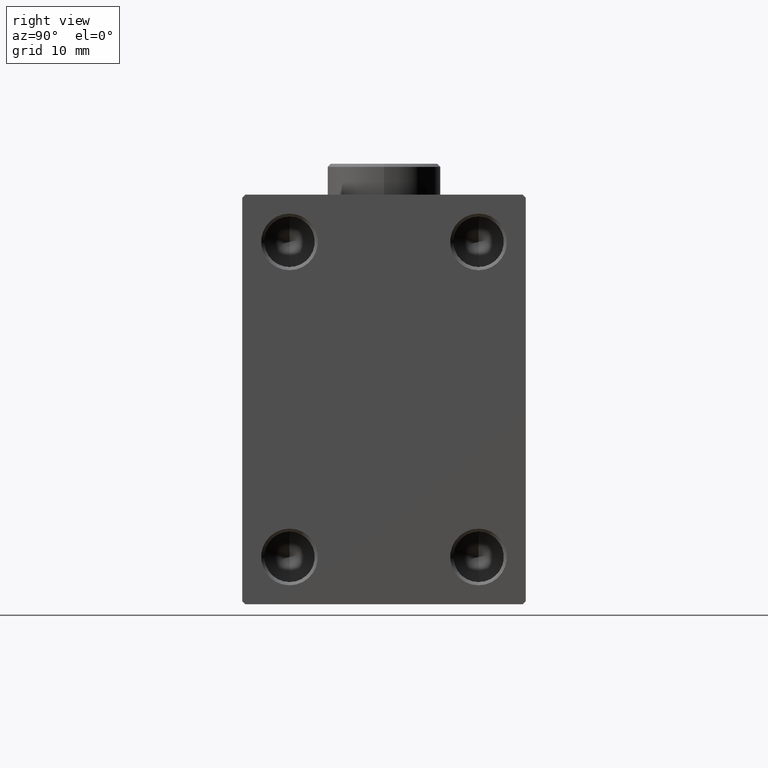
[diagram: clean part render]
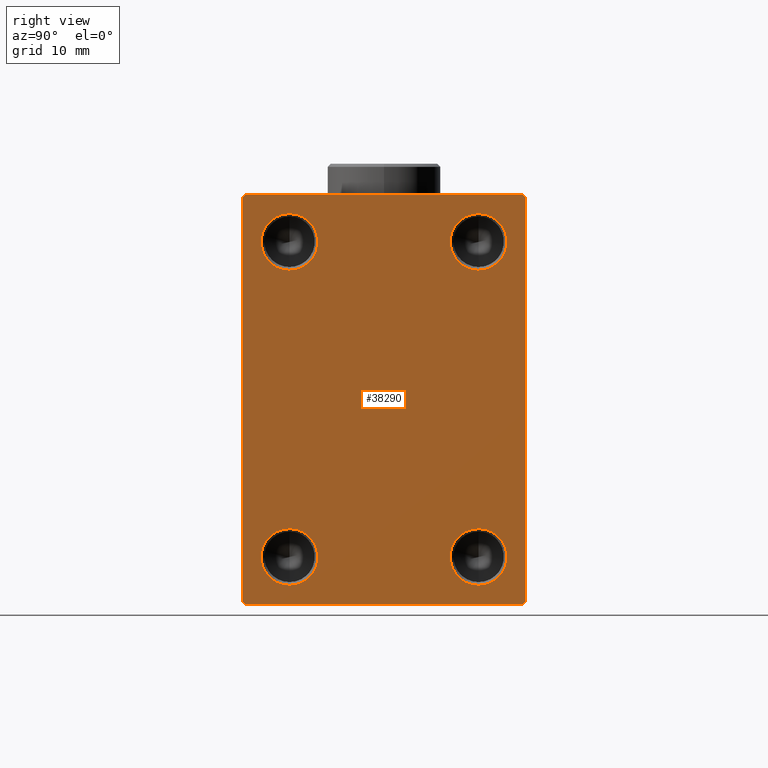
[diagram: same view with one face highlighted and labeled with its STEP entity id]
A machine part, right view. The second image highlights one B-rep face of the part: STEP entity #38290.
In plain terms, the highlighted planar face has unit normal (1, 0, 0).
Its self-contained STEP definition (entity closure, byte-faithful):
#306 = EDGE_CURVE ( 'NONE', #24695, #26015, #6291, .T. ) ;
#339 = CARTESIAN_POINT ( 'NONE',  ( 70.00000000000000000, 27.24999999999968026, 27.25000000000044054 ) ) ;
#1495 = ORIENTED_EDGE ( 'NONE', *, *, #38605, .T. ) ;
#1632 = LINE ( 'NONE', #33006, #26354 ) ;
#1705 = VERTEX_POINT ( 'NONE', #14839 ) ;
#1924 = LINE ( 'NONE', #12093, #13910 ) ;
#2378 = VERTEX_POINT ( 'NONE', #6727 ) ;
#2394 = ORIENTED_EDGE ( 'NONE', *, *, #20692, .F. ) ;
#2593 = CARTESIAN_POINT ( 'NONE',  ( 70.00000000000000000, -21.99999999999999289, -32.50000000000000711 ) ) ;
#4433 = EDGE_LOOP ( 'NONE', ( #2394, #20564 ) ) ;
#4435 = CARTESIAN_POINT ( 'NONE',  ( 70.00000000000000000, 0.000000000000000000, 0.000000000000000000 ) ) ;
#4542 = AXIS2_PLACEMENT_3D ( 'NONE', #43174, #18731, #25437 ) ;
#4593 = DIRECTION ( 'NONE',  ( 0.000000000000000000, -1.000000000000000000, -1.541976423090495633E-16 ) ) ;
#4735 = EDGE_CURVE ( 'NONE', #6355, #7952, #29055, .T. ) ;
#5401 = DIRECTION ( 'NONE',  ( 0.000000000000000000, 0.000000000000000000, -1.000000000000000000 ) ) ;
#5519 = DIRECTION ( 'NONE',  ( 0.000000000000000000, 0.000000000000000000, -1.000000000000000000 ) ) ;
#5525 = CARTESIAN_POINT ( 'NONE',  ( 70.00000000000000000, 22.50000000000000000, 31.99999999999999289 ) ) ;
#6150 = CARTESIAN_POINT ( 'NONE',  ( 70.00000000000000000, 22.50000000000000711, -31.99999999999999289 ) ) ;
#6251 = CARTESIAN_POINT ( 'NONE',  ( 70.00000000000000000, -21.99999999999997868, 32.49999999999998579 ) ) ;
#6267 = EDGE_CURVE ( 'NONE', #26015, #24695, #24420, .T. ) ;
#6291 = CIRCLE ( 'NONE', #29120, 4.499999999999976019 ) ;
#6355 = VERTEX_POINT ( 'NONE', #42952 ) ;
#6406 = EDGE_LOOP ( 'NONE', ( #37582, #45036, #33965, #1495, #22561, #41211, #35124, #41726 ) ) ;
#6705 = DIRECTION ( 'NONE',  ( -0.000000000000000000, 0.7071067811865524577, -0.7071067811865426878 ) ) ;
#6727 = CARTESIAN_POINT ( 'NONE',  ( 70.00000000000000000, -15.00000000000000000, 29.49999999999997158 ) ) ;
#7013 = EDGE_CURVE ( 'NONE', #1705, #42270, #31848, .T. ) ;
#7033 = LINE ( 'NONE', #339, #16214 ) ;
#7339 = VECTOR ( 'NONE', #45120, 1000.000000000000114 ) ;
#7457 = DIRECTION ( 'NONE',  ( 0.000000000000000000, 0.000000000000000000, -1.000000000000000000 ) ) ;
#7488 = DIRECTION ( 'NONE',  ( -0.000000000000000000, -0.7071067811865574537, 0.7071067811865376918 ) ) ;
#7952 = VERTEX_POINT ( 'NONE', #6251 ) ;
#8104 = DIRECTION ( 'NONE',  ( 0.000000000000000000, 0.000000000000000000, -1.000000000000000000 ) ) ;
#8472 = DIRECTION ( 'NONE',  ( 1.000000000000000000, -0.000000000000000000, -0.000000000000000000 ) ) ;
#8953 = VERTEX_POINT ( 'NONE', #5525 ) ;
#9205 = EDGE_CURVE ( 'NONE', #43146, #2378, #25285, .T. ) ;
#9515 = CARTESIAN_POINT ( 'NONE',  ( 70.00000000000000000, -22.49999999999999289, -32.50000000000000711 ) ) ;
#9762 = CARTESIAN_POINT ( 'NONE',  ( 70.00000000000000000, -15.00000000000000000, -25.00000000000000000 ) ) ;
#9798 = DIRECTION ( 'NONE',  ( 1.000000000000000000, -0.000000000000000000, -0.000000000000000000 ) ) ;
#10642 = DIRECTION ( 'NONE',  ( 0.000000000000000000, 0.000000000000000000, -1.000000000000000000 ) ) ;
#11082 = ORIENTED_EDGE ( 'NONE', *, *, #7013, .F. ) ;
#11300 = CARTESIAN_POINT ( 'NONE',  ( 70.00000000000000000, 22.50000000000000000, 32.49999999999999289 ) ) ;
#11360 = PLANE ( 'NONE',  #19780 ) ;
#11474 = CARTESIAN_POINT ( 'NONE',  ( 70.00000000000000000, 15.00000000000000178, -25.00000000000000000 ) ) ;
#12093 = CARTESIAN_POINT ( 'NONE',  ( 70.00000000000000000, 27.25000000000031264, -27.24999999999955236 ) ) ;
#12623 = CARTESIAN_POINT ( 'NONE',  ( 70.00000000000000000, 21.99999999999999289, -32.50000000000000711 ) ) ;
#12766 = AXIS2_PLACEMENT_3D ( 'NONE', #32268, #18416, #38716 ) ;
#12856 = CARTESIAN_POINT ( 'NONE',  ( 70.00000000000000000, 15.00000000000000178, 29.49999999999997513 ) ) ;
#12966 = CARTESIAN_POINT ( 'NONE',  ( 70.00000000000000000, -22.49999999999999289, 31.99999999999998579 ) ) ;
#13112 = AXIS2_PLACEMENT_3D ( 'NONE', #44696, #30650, #5519 ) ;
#13164 = CARTESIAN_POINT ( 'NONE',  ( 70.00000000000000000, -27.24999999999984368, -27.25000000000022027 ) ) ;
#13550 = CARTESIAN_POINT ( 'NONE',  ( 70.00000000000000000, -27.24999999999998934, 27.24999999999998934 ) ) ;
#13910 = VECTOR ( 'NONE', #19673, 999.9999999999998863 ) ;
#14067 = CARTESIAN_POINT ( 'NONE',  ( 70.00000000000000000, -15.00000000000000000, 20.50000000000003197 ) ) ;
#14390 = EDGE_LOOP ( 'NONE', ( #17167, #27983 ) ) ;
#14839 = CARTESIAN_POINT ( 'NONE',  ( 70.00000000000000000, -15.00000000000000000, -29.49999999999997158 ) ) ;
#15015 = DIRECTION ( 'NONE',  ( 1.000000000000000000, -0.000000000000000000, -0.000000000000000000 ) ) ;
#15390 = DIRECTION ( 'NONE',  ( 0.000000000000000000, 0.000000000000000000, -1.000000000000000000 ) ) ;
#16214 = VECTOR ( 'NONE', #7488, 999.9999999999998863 ) ;
#16440 = VERTEX_POINT ( 'NONE', #39455 ) ;
#16608 = LINE ( 'NONE', #13164, #33779 ) ;
#16785 = AXIS2_PLACEMENT_3D ( 'NONE', #31021, #9798, #45291 ) ;
#17167 = ORIENTED_EDGE ( 'NONE', *, *, #30659, .F. ) ;
#17894 = VERTEX_POINT ( 'NONE', #12623 ) ;
#18416 = DIRECTION ( 'NONE',  ( 1.000000000000000000, -0.000000000000000000, -0.000000000000000000 ) ) ;
#18500 = VECTOR ( 'NONE', #4593, 1000.000000000000000 ) ;
#18731 = DIRECTION ( 'NONE',  ( 1.000000000000000000, -0.000000000000000000, -0.000000000000000000 ) ) ;
#18943 = CIRCLE ( 'NONE', #40302, 4.499999999999976019 ) ;
#19673 = DIRECTION ( 'NONE',  ( -0.000000000000000000, 0.7071067811865376918, 0.7071067811865574537 ) ) ;
#19780 = AXIS2_PLACEMENT_3D ( 'NONE', #4435, #28665, #7457 ) ;
#20564 = ORIENTED_EDGE ( 'NONE', *, *, #28464, .F. ) ;
#20692 = EDGE_CURVE ( 'NONE', #43430, #32630, #32844, .T. ) ;
#21509 = FACE_BOUND ( 'NONE', #14390, .T. ) ;
#21801 = EDGE_CURVE ( 'NONE', #42712, #16440, #42911, .T. ) ;
#21877 = VECTOR ( 'NONE', #39587, 1000.000000000000000 ) ;
#22228 = VERTEX_POINT ( 'NONE', #6150 ) ;
#22561 = ORIENTED_EDGE ( 'NONE', *, *, #24016, .T. ) ;
#23041 = EDGE_LOOP ( 'NONE', ( #40310, #11082 ) ) ;
#24016 = EDGE_CURVE ( 'NONE', #25488, #17894, #41095, .T. ) ;
#24420 = CIRCLE ( 'NONE', #4542, 4.499999999999976019 ) ;
#24486 = AXIS2_PLACEMENT_3D ( 'NONE', #9762, #37225, #5401 ) ;
#24695 = VERTEX_POINT ( 'NONE', #43774 ) ;
#24744 = FACE_BOUND ( 'NONE', #4433, .T. ) ;
#24753 = CARTESIAN_POINT ( 'NONE',  ( 70.00000000000000000, 15.00000000000000178, 25.00000000000000000 ) ) ;
#25285 = CIRCLE ( 'NONE', #12766, 4.499999999999976019 ) ;
#25437 = DIRECTION ( 'NONE',  ( 0.000000000000000000, 0.000000000000000000, -1.000000000000000000 ) ) ;
#25488 = VERTEX_POINT ( 'NONE', #2593 ) ;
#26015 = VERTEX_POINT ( 'NONE', #36819 ) ;
#26354 = VECTOR ( 'NONE', #26553, 1000.000000000000000 ) ;
#26553 = DIRECTION ( 'NONE',  ( 0.000000000000000000, -1.067522139062650425E-16, 1.000000000000000000 ) ) ;
#27126 = CIRCLE ( 'NONE', #13112, 4.499999999999976019 ) ;
#27983 = ORIENTED_EDGE ( 'NONE', *, *, #9205, .F. ) ;
#28464 = EDGE_CURVE ( 'NONE', #32630, #43430, #18943, .T. ) ;
#28627 = CARTESIAN_POINT ( 'NONE',  ( 70.00000000000000000, -22.49999999999999289, 32.49999999999998579 ) ) ;
#28665 = DIRECTION ( 'NONE',  ( 1.000000000000000000, 0.000000000000000000, 0.000000000000000000 ) ) ;
#29055 = LINE ( 'NONE', #11300, #18500 ) ;
#29120 = AXIS2_PLACEMENT_3D ( 'NONE', #11474, #8472, #15390 ) ;
#30650 = DIRECTION ( 'NONE',  ( 1.000000000000000000, -0.000000000000000000, -0.000000000000000000 ) ) ;
#30659 = EDGE_CURVE ( 'NONE', #2378, #43146, #27126, .T. ) ;
#30672 = CARTESIAN_POINT ( 'NONE',  ( 70.00000000000000000, 15.00000000000000178, 20.50000000000002842 ) ) ;
#31021 = CARTESIAN_POINT ( 'NONE',  ( 70.00000000000000000, -15.00000000000000000, -25.00000000000000000 ) ) ;
#31073 = LINE ( 'NONE', #13550, #7339 ) ;
#31848 = CIRCLE ( 'NONE', #24486, 4.499999999999976019 ) ;
#32268 = CARTESIAN_POINT ( 'NONE',  ( 70.00000000000000000, -15.00000000000000000, 25.00000000000000000 ) ) ;
#32630 = VERTEX_POINT ( 'NONE', #30672 ) ;
#32844 = CIRCLE ( 'NONE', #33557, 4.499999999999976019 ) ;
#33006 = CARTESIAN_POINT ( 'NONE',  ( 70.00000000000000000, 22.50000000000000711, -32.50000000000000711 ) ) ;
#33557 = AXIS2_PLACEMENT_3D ( 'NONE', #24753, #38817, #39276 ) ;
#33779 = VECTOR ( 'NONE', #6705, 1000.000000000000000 ) ;
#33965 = ORIENTED_EDGE ( 'NONE', *, *, #21801, .T. ) ;
#34021 = EDGE_CURVE ( 'NONE', #8953, #6355, #7033, .T. ) ;
#34750 = CARTESIAN_POINT ( 'NONE',  ( 70.00000000000000000, -15.00000000000000000, -20.50000000000003197 ) ) ;
#35124 = ORIENTED_EDGE ( 'NONE', *, *, #35495, .T. ) ;
#35495 = EDGE_CURVE ( 'NONE', #22228, #8953, #1632, .T. ) ;
#36819 = CARTESIAN_POINT ( 'NONE',  ( 70.00000000000000000, 15.00000000000000178, -20.50000000000002842 ) ) ;
#37008 = EDGE_CURVE ( 'NONE', #42270, #1705, #44043, .T. ) ;
#37225 = DIRECTION ( 'NONE',  ( 1.000000000000000000, -0.000000000000000000, -0.000000000000000000 ) ) ;
#37582 = ORIENTED_EDGE ( 'NONE', *, *, #4735, .T. ) ;
#38046 = EDGE_CURVE ( 'NONE', #17894, #22228, #1924, .T. ) ;
#38290 = ADVANCED_FACE ( 'NONE', ( #24744, #21509, #42947, #39724, #38808 ), #11360, .T. ) ;
#38605 = EDGE_CURVE ( 'NONE', #16440, #25488, #16608, .T. ) ;
#38716 = DIRECTION ( 'NONE',  ( 0.000000000000000000, 0.000000000000000000, -1.000000000000000000 ) ) ;
#38808 = FACE_OUTER_BOUND ( 'NONE', #6406, .T. ) ;
#38817 = DIRECTION ( 'NONE',  ( 1.000000000000000000, -0.000000000000000000, -0.000000000000000000 ) ) ;
#39276 = DIRECTION ( 'NONE',  ( 0.000000000000000000, 0.000000000000000000, -1.000000000000000000 ) ) ;
#39455 = CARTESIAN_POINT ( 'NONE',  ( 70.00000000000000000, -22.49999999999999289, -32.00000000000001421 ) ) ;
#39587 = DIRECTION ( 'NONE',  ( 0.000000000000000000, 1.000000000000000000, 0.000000000000000000 ) ) ;
#39668 = ORIENTED_EDGE ( 'NONE', *, *, #306, .F. ) ;
#39724 = FACE_BOUND ( 'NONE', #41283, .T. ) ;
#40302 = AXIS2_PLACEMENT_3D ( 'NONE', #43666, #15015, #8104 ) ;
#40310 = ORIENTED_EDGE ( 'NONE', *, *, #37008, .F. ) ;
#41095 = LINE ( 'NONE', #9515, #21877 ) ;
#41211 = ORIENTED_EDGE ( 'NONE', *, *, #38046, .T. ) ;
#41283 = EDGE_LOOP ( 'NONE', ( #44329, #39668 ) ) ;
#41726 = ORIENTED_EDGE ( 'NONE', *, *, #34021, .T. ) ;
#42270 = VERTEX_POINT ( 'NONE', #34750 ) ;
#42712 = VERTEX_POINT ( 'NONE', #12966 ) ;
#42911 = LINE ( 'NONE', #28627, #43173 ) ;
#42947 = FACE_BOUND ( 'NONE', #23041, .T. ) ;
#42952 = CARTESIAN_POINT ( 'NONE',  ( 70.00000000000000000, 21.99999999999998579, 32.49999999999999289 ) ) ;
#43146 = VERTEX_POINT ( 'NONE', #14067 ) ;
#43173 = VECTOR ( 'NONE', #10642, 1000.000000000000000 ) ;
#43174 = CARTESIAN_POINT ( 'NONE',  ( 70.00000000000000000, 15.00000000000000178, -25.00000000000000000 ) ) ;
#43430 = VERTEX_POINT ( 'NONE', #12856 ) ;
#43666 = CARTESIAN_POINT ( 'NONE',  ( 70.00000000000000000, 15.00000000000000178, 25.00000000000000000 ) ) ;
#43774 = CARTESIAN_POINT ( 'NONE',  ( 70.00000000000000000, 15.00000000000000178, -29.49999999999997513 ) ) ;
#44043 = CIRCLE ( 'NONE', #16785, 4.499999999999976019 ) ;
#44225 = EDGE_CURVE ( 'NONE', #7952, #42712, #31073, .T. ) ;
#44329 = ORIENTED_EDGE ( 'NONE', *, *, #6267, .F. ) ;
#44696 = CARTESIAN_POINT ( 'NONE',  ( 70.00000000000000000, -15.00000000000000000, 25.00000000000000000 ) ) ;
#45036 = ORIENTED_EDGE ( 'NONE', *, *, #44225, .T. ) ;
#45120 = DIRECTION ( 'NONE',  ( 0.000000000000000000, -0.7071067811865474617, -0.7071067811865474617 ) ) ;
#45291 = DIRECTION ( 'NONE',  ( 0.000000000000000000, 0.000000000000000000, -1.000000000000000000 ) ) ;